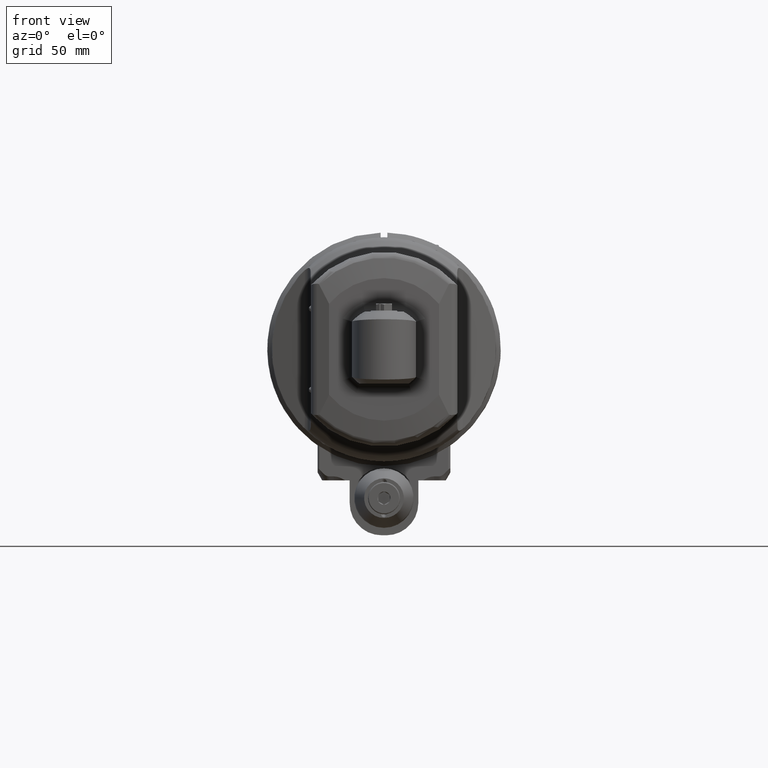
[diagram: clean part render]
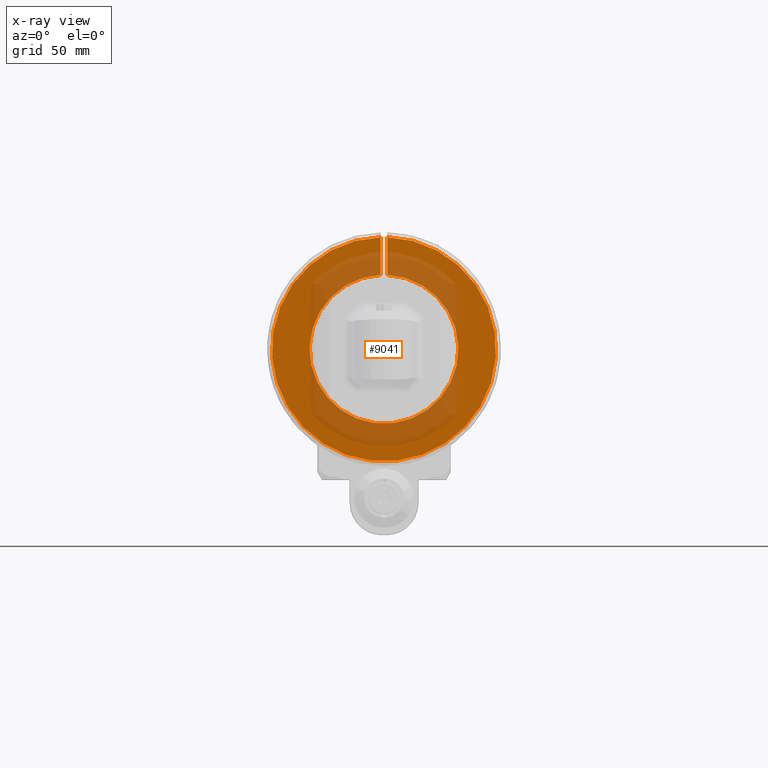
[diagram: x-ray — body ghosted, one internal face saturated and labeled with its STEP entity id]
A machine part, front view, then the same camera in x-ray: the body is ghosted and one INTERNAL B-rep face — a face not visible from any outside direction — is saturated and labeled: STEP entity #9041.
In plain terms, the highlighted planar face has unit normal (0, -1, 0).
Its self-contained STEP definition (entity closure, byte-faithful):
#764=LINE('',#14596,#1413);
#769=LINE('',#14630,#1418);
#1413=VECTOR('',#11297,0.65006571942874);
#1418=VECTOR('',#11308,0.65006571942874);
#2151=FACE_OUTER_BOUND('',#2714,.T.);
#2714=EDGE_LOOP('',(#6700,#6701,#6702,#6703));
#3258=CIRCLE('',#9786,1.92913385826772);
#3261=CIRCLE('',#9791,1.27952755905512);
#3840=VERTEX_POINT('',#14585);
#3841=VERTEX_POINT('',#14589);
#3842=VERTEX_POINT('',#14595);
#3850=VERTEX_POINT('',#14629);
#4891=EDGE_CURVE('',#3841,#3840,#3258,.T.);
#4893=EDGE_CURVE('',#3842,#3841,#764,.T.);
#4902=EDGE_CURVE('',#3840,#3850,#769,.T.);
#4903=EDGE_CURVE('',#3850,#3842,#3261,.T.);
#6700=ORIENTED_EDGE('',*,*,#4891,.T.);
#6701=ORIENTED_EDGE('',*,*,#4902,.T.);
#6702=ORIENTED_EDGE('',*,*,#4903,.T.);
#6703=ORIENTED_EDGE('',*,*,#4893,.T.);
#8683=PLANE('',#9790);
#9041=ADVANCED_FACE('',(#2151),#8683,.T.);
#9786=AXIS2_PLACEMENT_3D('',#14590,#11293,#11294);
#9790=AXIS2_PLACEMENT_3D('',#14628,#11306,#11307);
#9791=AXIS2_PLACEMENT_3D('',#14631,#11309,#11310);
#11293=DIRECTION('center_axis',(0.,-1.,0.));
#11294=DIRECTION('ref_axis',(0.,0.,-1.));
#11297=DIRECTION('',(0.,0.,1.));
#11306=DIRECTION('center_axis',(0.,-1.,0.));
#11307=DIRECTION('ref_axis',(0.,0.,1.));
#11308=DIRECTION('',(0.,0.,-1.));
#11309=DIRECTION('center_axis',(0.,1.,0.));
#11310=DIRECTION('ref_axis',(0.0461538461538519,0.,0.998934343430641));
#14585=CARTESIAN_POINT('',(0.0590551181102362,0.,1.92822974153504));
#14589=CARTESIAN_POINT('',(-0.0590551181102362,0.,1.92822974153504));
#14590=CARTESIAN_POINT('Origin',(0.,0.,0.));
#14595=CARTESIAN_POINT('',(-0.0590551181102362,0.,1.2781640221063));
#14596=CARTESIAN_POINT('',(-0.0590551181102362,0.,1.2781640221063));
#14628=CARTESIAN_POINT('Origin',(0.,0.,1.93428110441063));
#14629=CARTESIAN_POINT('',(0.0590551181102362,0.,1.2781640221063));
#14630=CARTESIAN_POINT('',(0.0590551181102362,0.,1.92822974153504));
#14631=CARTESIAN_POINT('Origin',(0.,0.,0.));